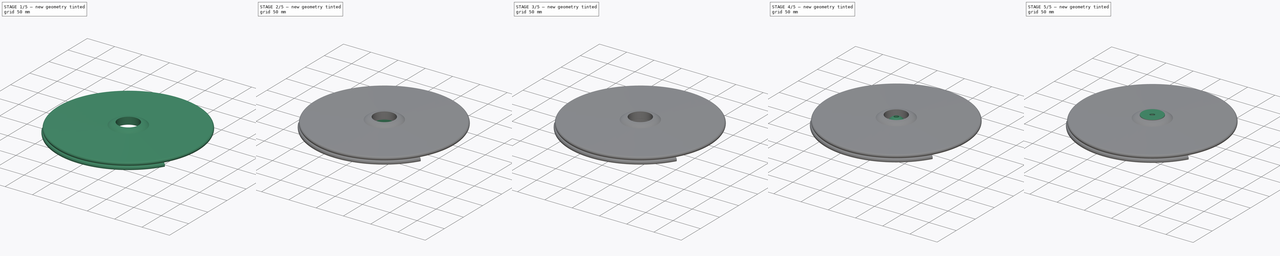
[diagram: build sequence overview — one tinted view per stage of 5, left to right]
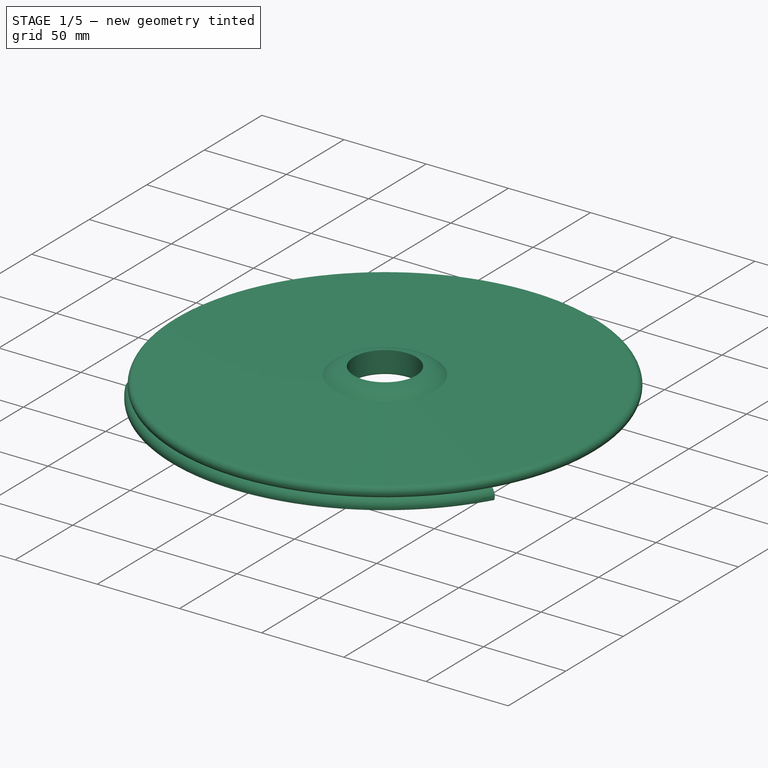
[diagram: stage 1 of 5 — iso view after this stage's code; geometry added in this stage tinted green]
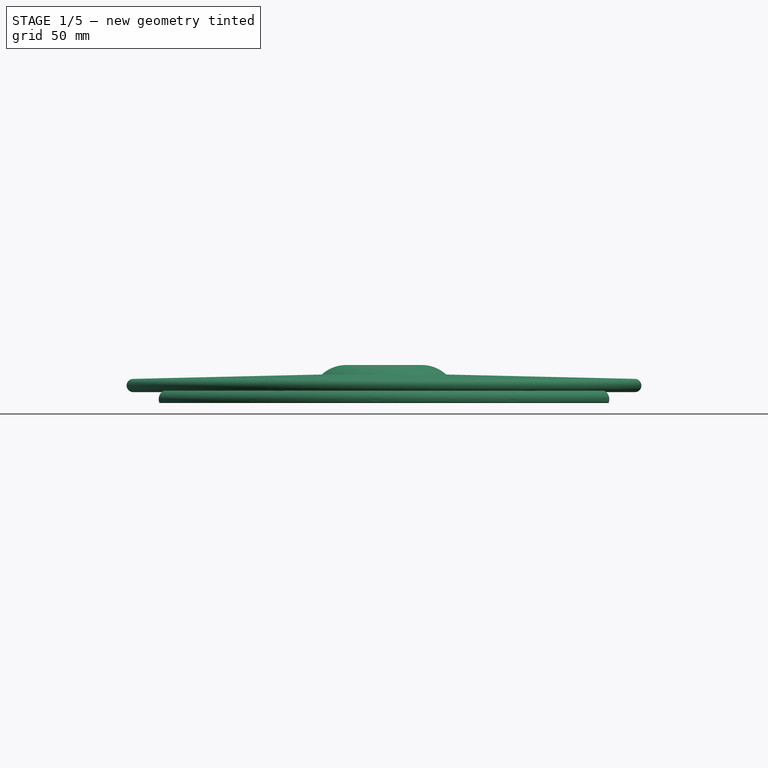
[diagram: stage 1 of 5 — front view after this stage's code; geometry added in this stage tinted green]
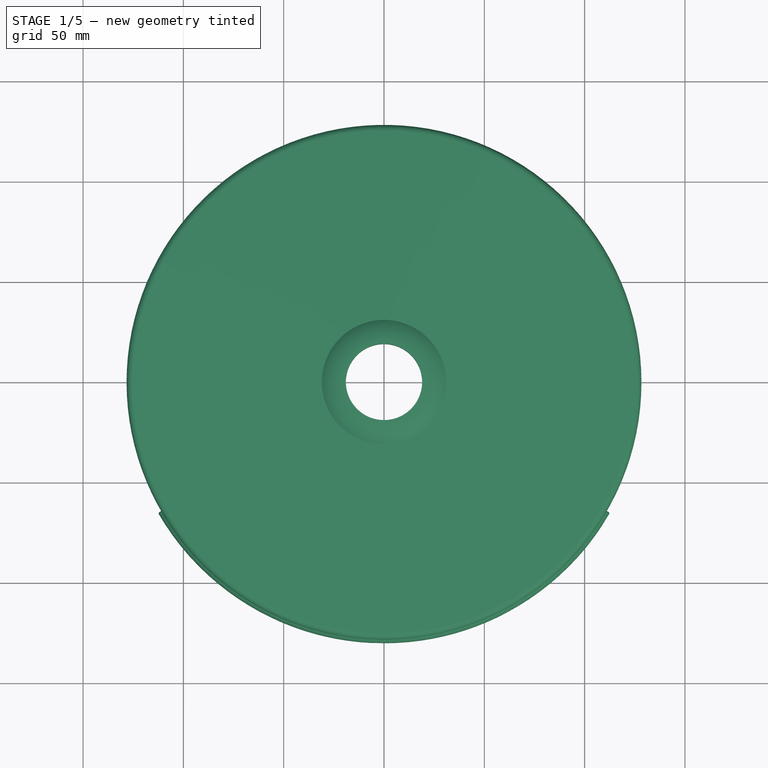
[diagram: stage 1 of 5 — top view after this stage's code; geometry added in this stage tinted green]
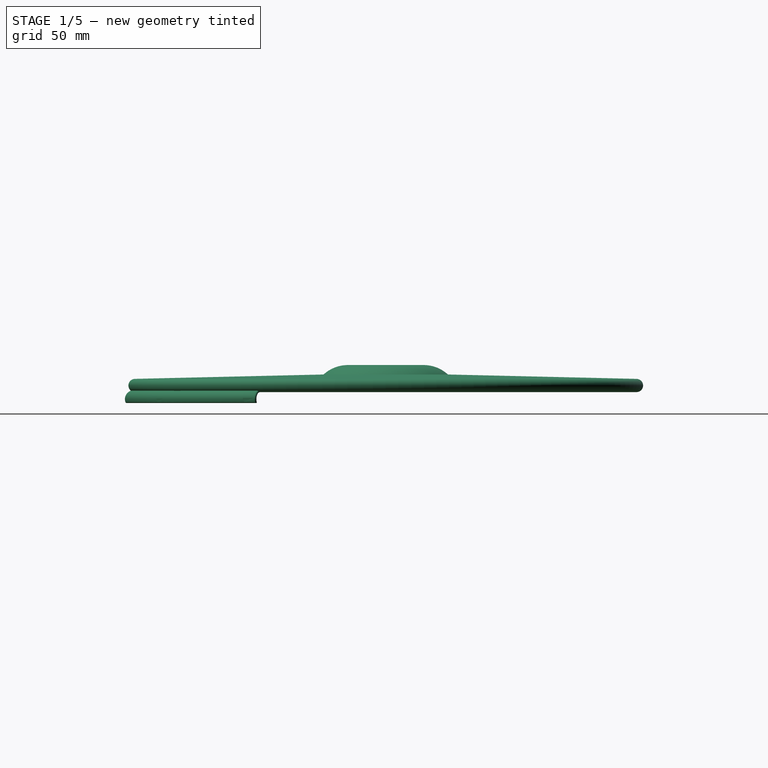
[diagram: stage 1 of 5 — right view after this stage's code; geometry added in this stage tinted green]
FCSTD DOCUMENT  (FreeCAD 1.0R39319 (Git))
Label: Cymbal
License: All rights reserved
LicenseURL: https://en.wikipedia.org/wiki/All_rights_reserved
objects: PartDesign::Fillet×10, Sketcher::SketchObject×9, PartDesign::SubtractiveCylinder×8, PartDesign::AdditiveCylinder×5, PartDesign::Body×5, PartDesign::Pad×4, PartDesign::Plane×4, PartDesign::Pocket×4, PartDesign::Revolution×3, PartDesign::Mirrored×3, PartDesign::SubtractiveBox×1, Part::Feature×1, PartDesign::Hole×1, PartDesign::AdditiveSphere×1, PartDesign::AdditiveWedge×1, PartDesign::SubtractiveSphere×1, PartDesign::SubShapeBinder×1, Part::FeaturePython×1, PartDesign::PolarPattern×1
note: 155 computed .brp shape members not serialized (recipe doc carries the construction recipe); baked Part::Feature solids carry a one-line shape summary decoded from their .brp

FEATURE [Sketcher::SketchObject] Sketch  label="Body Profile"
  ArcFitTolerance = 1e-06
  AttachmentSupport = -> [XZ_Plane]
  FullyConstrained = true
  MakeInternals = false
  MapMode = 5
  Placement = pos=(0,0,0) rot=(1,0,0;1.5708rad)
  sketch-geometry (4):
    g0: LineSegment StartX=0 StartY=0 StartZ=0 EndX=-125 EndY=0 EndZ=0
    g1: ArcOfCircle CenterX=-125 CenterY=3.3 CenterZ=0 NormalX=0 NormalY=0 NormalZ=1 AngleXU=0 Radius=3.3 StartAngle=1.59399 EndAngle=4.71239
    g2: LineSegment StartX=-125.077 StartY=6.59911 StartZ=0 EndX=0 EndY=9.5 EndZ=0
    g3: LineSegment StartX=0 StartY=0 StartZ=0 EndX=0 EndY=9.5 EndZ=0
  constraints (12):
    c: PointOnObject(g0,g-2)
    c: PointOnObject(g2,g-2)
    c: Coincident(g3,g0)
    c: Coincident(g3,g2)
    c: Radius(g1) = 3.3
    c: Tangent(g1,g-1)
    c: Tangent(g2,g1) = 1.5708
    c: DistanceX(g1,g-1) = 125
    c: DistanceY(g-1,g2) = 9.5
    c: Vertical(g1,g1)
    c: Coincident(g1,g0)
    c: Horizontal(g0)
FEATURE [PartDesign::Revolution] Revolution
  Angle = 360
  Angle2 = 60
  Axis = (0,2e-16,1)
  Base = (0,0,0)
  Placement = pos=(0,0,0) rot=(1,0,0;1.5708rad)
  Profile = -> Sketch
  ReferenceAxis = -> Sketch [V_Axis]
  Refine = true
  Suppressed = false
  Type = 0
FEATURE [Sketcher::SketchObject] Sketch001
  ArcFitTolerance = 1e-06
  AttachmentSupport = -> [XZ_Plane]
  ExternalGeometry = -> [Revolution]
  FullyConstrained = true
  MakeInternals = false
  MapMode = 5
  Placement = pos=(0,0,0) rot=(1,0,0;1.5708rad)
  sketch-geometry (4):
    g0: LineSegment StartX=-19 StartY=13.5 StartZ=0 EndX=0 EndY=13.5 EndZ=0
    g1: ArcOfCircle CenterX=-18.8496 CenterY=-4.49937 CenterZ=0 NormalX=0 NormalY=0 NormalZ=1 AngleXU=0 Radius=18 StartAngle=1.57915 EndAngle=2.31179
    g2: LineSegment StartX=0 StartY=13.5 StartZ=0 EndX=0 EndY=9.5 EndZ=0
    g3: LineSegment StartX=0 StartY=9.5 StartZ=0 EndX=-31 EndY=8.78102 EndZ=0
  constraints (12):
    c: Distance(g0) = 19
    c: Horizontal(g0)
    c: Radius(g1) = 18
    c: Vertical(g0,g-1)
    c: DistanceX(g1,g0) = 12
    c: Coincident(g0,g2)
    c: Coincident(g2,g3)
    c: Coincident(g3,g1)
    c: DistanceY(g2,g2) = 4
    c: Coincident(g1,g0)
    c: Tangent(g3,g-3)
    c: Vertical(g2)
FEATURE [PartDesign::Revolution] Revolution001
  Angle = 360
  Angle2 = 60
  Axis = (0,2e-16,1)
  Base = (0,0,0)
  BaseFeature = -> Revolution
  Placement = pos=(0,0,0) rot=(1,0,0;1.5708rad)
  Profile = -> Sketch001
  ReferenceAxis = -> Sketch001 [V_Axis]
  Refine = true
  Suppressed = false
  Type = 0
FEATURE [PartDesign::SubtractiveCylinder] Cylinder
  Angle = 360
  AttacherType = Attacher::AttachEngine3D
  AttachmentSupport = -> [X_Axis]
  BaseFeature = -> Revolution001
  FirstAngle = 0
  Height = 20
  MapMode = 2
  Radius = 19
  Refine = true
  SecondAngle = 0
  Suppressed = false
FEATURE [PartDesign::Fillet] Fillet001
  Base = -> Cylinder [Edge5]
  BaseFeature = -> Cylinder
  Radius = 1
  Refine = true
  SupportTransform = false
  Suppressed = false
  UseAllEdges = false
FEATURE [PartDesign::Body] Body002  label="Pole Mount Body"
  AllowCompound = false
  Group = -> [Cylinder007,Sphere,Wedge,Cylinder008,Cylinder009,Fillet006,Fillet009]
  Origin = -> Origin002
  Tip = -> Fillet009
FEATURE [PartDesign::SubtractiveCylinder] Cylinder012
  Angle = 360
  AttacherType = Attacher::AttachEngine3D
  AttachmentOffset = pos=(-11.25,-93,0) rot=(0,0,1;0rad)
  AttachmentSupport = -> [XY_Plane]
  BaseFeature = -> Fillet001
  FirstAngle = 0
  Height = 5
  MapMode = 5
  Placement = pos=(-11.25,-93,0) rot=(0,0,1;0rad)
  Radius = 1
  Refine = true
  SecondAngle = 0
  Suppressed = false
FEATURE [PartDesign::Body] Body001  label="Sensor Body"
  AllowCompound = false
  Group = -> [Sketch002,Pad,Cylinder001,Cylinder002,Box,Cylinder003,DatumPlane,Sketch003,Pocket,Cylinder004,Pad001,DatumPlane001,Sketch004,Hole,Mirrored,Sketch005,Pocket001,Pocket002,Pocket003,Mirrored001,Fillet002,Fillet003,Fillet005,Fillet,DatumPlane003,Cylinder006]
  Origin = -> Origin001
  Placement = pos=(0,0,-1.5) rot=(0,0,1;0rad)
  Tip = -> Cylinder006
FEATURE [PartDesign::Mirrored] Mirrored002
  BaseFeature = -> Cylinder012
  MirrorPlane = -> YZ_Plane
  Originals = -> [Cylinder012]
  Placement = pos=(-11.25,-93,0) rot=(0,0,1;0rad)
  Refine = true
  Suppressed = false
  TransformMode = 0
FEATURE [PartDesign::Body] Body  label="Cymbal Body"
  AllowCompound = false
  Group = -> [Sketch,Revolution,Sketch001,Revolution001,Cylinder,Fillet001,DatumPlane002,Cylinder012,Mirrored002,Cylinder013,PolarPattern]
  Origin = -> Origin
  Tip = -> PolarPattern
FEATURE [Sketcher::SketchObject] Sketch007
  ArcFitTolerance = 1e-06
  AttachmentSupport = -> [XY_Plane004]
  FullyConstrained = true
  MakeInternals = false
  MapMode = 5
  sketch-geometry (6):
    g0: ArcOfCircle CenterX=0 CenterY=0 CenterZ=0 NormalX=0 NormalY=0 NormalZ=1 AngleXU=0 Radius=32 StartAngle=3.66519 EndAngle=5.75959
    g1: LineSegment [constr] StartX=-27.7128 StartY=-16 StartZ=0 EndX=0 EndY=0 EndZ=0
    g2: ArcOfCircle CenterX=0 CenterY=0 CenterZ=0 NormalX=0 NormalY=0 NormalZ=1 AngleXU=0 Radius=125.5 StartAngle=3.66519 EndAngle=5.75959
    g3: LineSegment [constr] StartX=0 StartY=0 StartZ=0 EndX=108.686 EndY=-62.75 EndZ=0
    g4: LineSegment StartX=-27.7128 StartY=-16 StartZ=0 EndX=-108.686 EndY=-62.75 EndZ=0
    g5: LineSegment StartX=27.7128 StartY=-16 StartZ=0 EndX=108.686 EndY=-62.75 EndZ=0
  constraints (16):
    c: Radius(g0) = 32
    c: Angle(g0) = 2.0944
    c: Coincident(g0,g-1)
    c: Coincident(g1,g0)
    c: Coincident(g1,g0)
    c: Angle(g-1,g1) = 0.523599
    c: Radius(g2) = 125.5
    c: Angle(g2) = 2.0944
    c: Coincident(g2,g0)
    c: Coincident(g3,g0)
    c: Coincident(g3,g2)
    c: Angle(g3,g-1) = 0.523599
    c: Coincident(g4,g0)
    c: Coincident(g4,g2)
    c: Coincident(g5,g0)
    c: Coincident(g5,g2)
FEATURE [PartDesign::Pad] Pad003
  Direction = (0,0,1)
  Length = 1
  Length2 = 10
  Profile = -> Sketch007
  ReferenceAxis = -> Sketch007 [N_Axis]
  Refine = true
  Suppressed = false
  Type = 0
FEATURE [Sketcher::SketchObject] Sketch008
  ArcFitTolerance = 1e-06
  AttachmentSupport = -> [Pad003]
  ExternalGeometry = -> [Pad003]
  FullyConstrained = true
  MakeInternals = false
  MapMode = 5
  Placement = pos=(-2.19898e-06,3.80874e-06,0) rot=(-0.186157,0.694747,0.694747;3.50969rad)
  sketch-geometry (4):
    g0: ArcOfCircle CenterX=125.5 CenterY=-3.5 CenterZ=0 NormalX=0 NormalY=0 NormalZ=1 AngleXU=0 Radius=3.5 StartAngle=5.75959 EndAngle=7.85398
    g1: ArcOfCircle CenterX=125.5 CenterY=-3.5 CenterZ=0 NormalX=0 NormalY=0 NormalZ=1 AngleXU=0 Radius=4.5 StartAngle=5.75959 EndAngle=7.85398
    g2: LineSegment StartX=128.531 StartY=-5.25 StartZ=0 EndX=129.397 EndY=-5.75 EndZ=0
    g3: LineSegment StartX=125.5 StartY=1 StartZ=0 EndX=125.5 EndY=-4.4e-15 EndZ=0
  constraints (11):
    c: Angle(g0) = 2.0944
    c: Coincident(g0,g-3)
    c: Angle(g1) = 2.0944
    c: Coincident(g1,g0)
    c: Coincident(g1,g-3)
    c: Coincident(g0,g2)
    c: Coincident(g2,g1)
    c: Radius(g0) = 3.5
    c: Vertical(g0,g0)
    c: Coincident(g3,g1)
    c: Coincident(g3,g0)
FEATURE [PartDesign::Revolution] Revolution002
  Angle = 120
  Angle2 = 60
  Axis = (-1e-16,2e-16,1)
  Base = (-2.19898e-06,3.80874e-06,0)
  BaseFeature = -> Pad003
  Profile = -> Sketch008
  ReferenceAxis = -> Sketch008 [V_Axis]
  Refine = true
  Suppressed = false
  Type = 0
FEATURE [PartDesign::Fillet] Fillet010
  Base = -> Revolution002 [Edge9,Edge15,Edge2,Edge16,Edge17,Edge10]
  BaseFeature = -> Revolution002
  Radius = 0.8
  Refine = true
  SupportTransform = false
  Suppressed = false
  UseAllEdges = false
FEATURE [PartDesign::Body] Body004  label="Shock Pad Body"
  AllowCompound = false
  Group = -> [Sketch007,Pad003,Sketch008,Revolution002,Fillet010]
  Origin = -> Origin004
  Placement = pos=(0,0,8.8) rot=(0,0,1;0rad)
  Tip = -> Fillet010
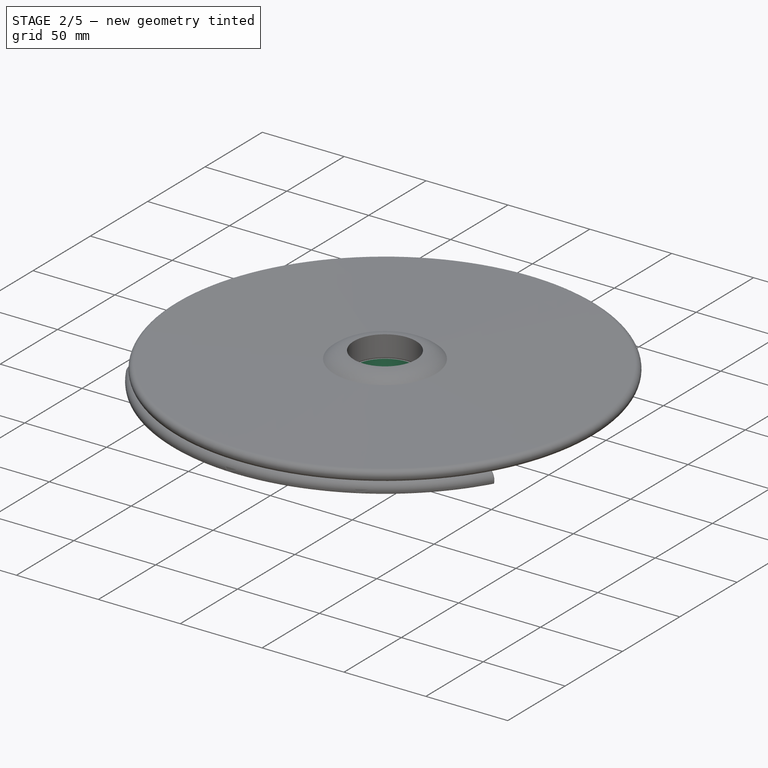
[diagram: stage 2 of 5 — iso view after this stage's code; geometry added in this stage tinted green]
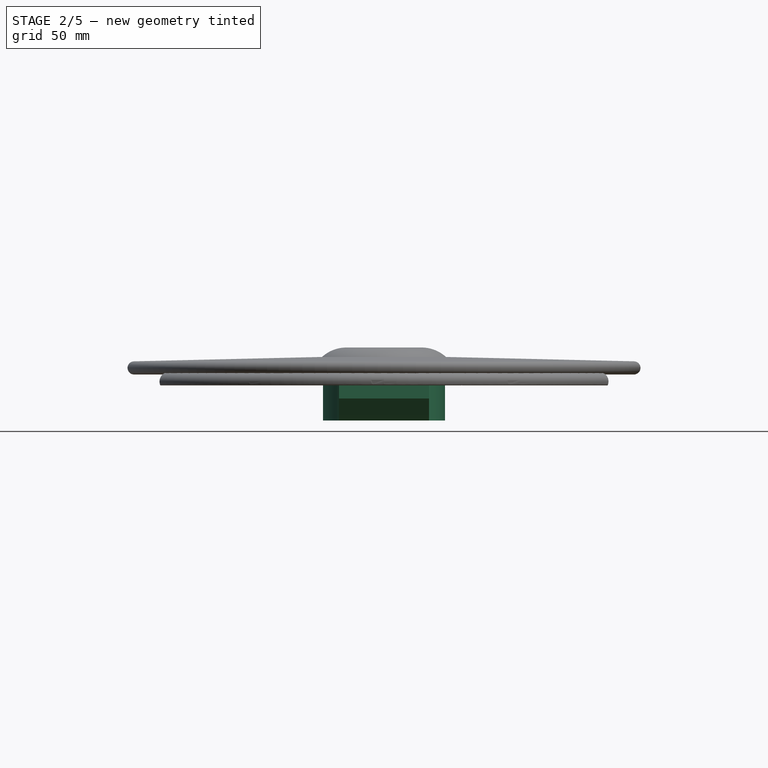
[diagram: stage 2 of 5 — front view after this stage's code; geometry added in this stage tinted green]
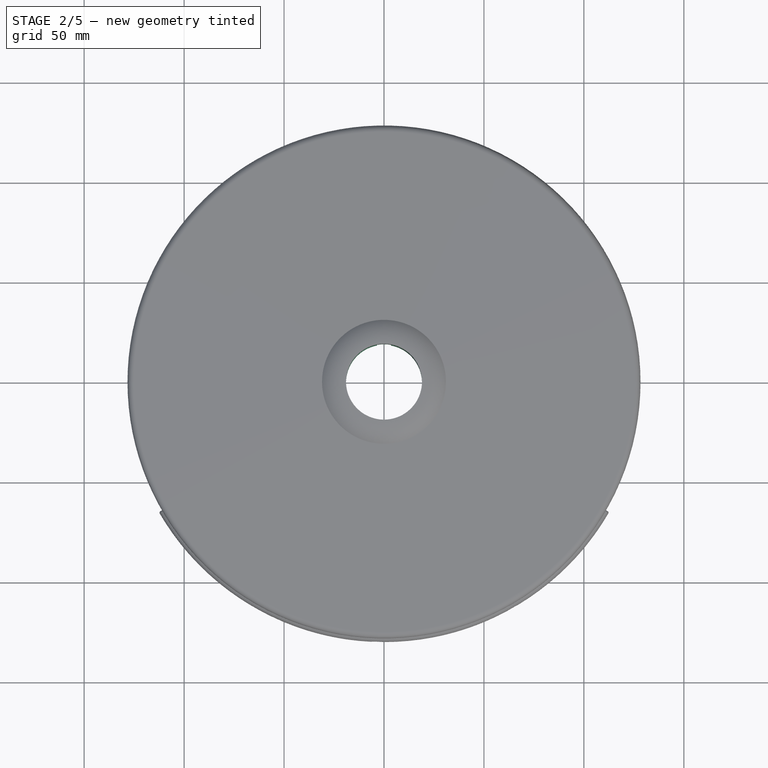
[diagram: stage 2 of 5 — top view after this stage's code; geometry added in this stage tinted green]
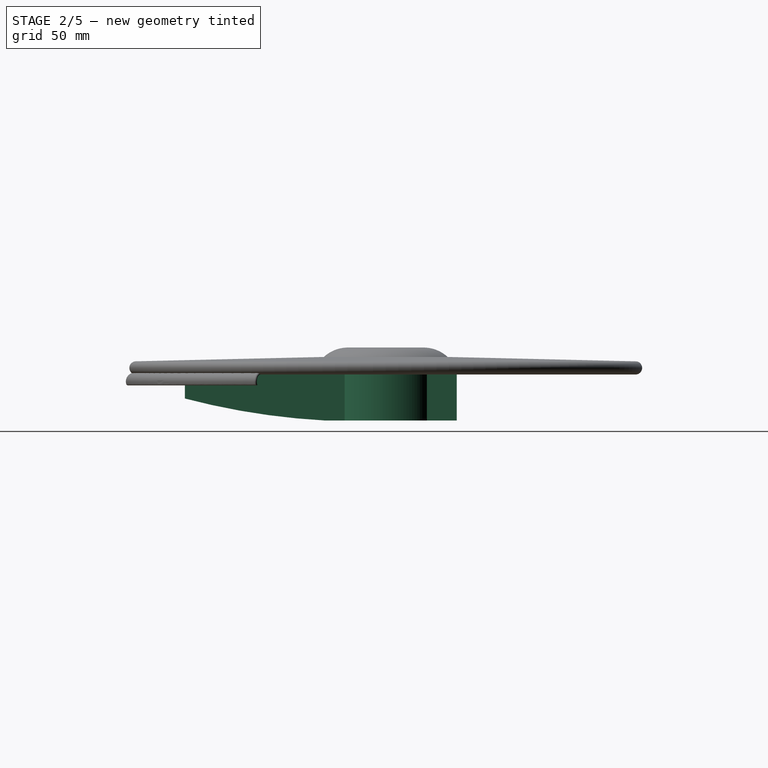
[diagram: stage 2 of 5 — right view after this stage's code; geometry added in this stage tinted green]
FEATURE [Sketcher::SketchObject] Sketch002
  ArcFitTolerance = 1e-06
  AttachmentSupport = -> [YZ_Plane001]
  FullyConstrained = true
  MakeInternals = false
  MapMode = 5
  Placement = pos=(0,0,0) rot=(0.57735,0.57735,0.57735;2.0944rad)
  sketch-geometry (6):
    g0: LineSegment StartX=-30.5 StartY=0 StartZ=0 EndX=35.5 EndY=0 EndZ=0
    g1: LineSegment StartX=35.5 StartY=0 StartZ=0 EndX=35.5 EndY=-23 EndZ=0
    g2: LineSegment StartX=-30.5 StartY=0 StartZ=0 EndX=-100.5 EndY=0 EndZ=0
    g3: LineSegment StartX=-100.5 StartY=0 StartZ=0 EndX=-100.5 EndY=-12 EndZ=0
    g4: LineSegment StartX=35.5 StartY=-23 StartZ=0 EndX=-30.5 EndY=-23 EndZ=0
    g5: ArcOfCircle CenterX=-11.4458 CenterY=326.481 CenterZ=0 NormalX=0 NormalY=0 NormalZ=1 AngleXU=0 Radius=350 StartAngle=4.45512 EndAngle=4.65792
  constraints (19):
    c: Distance(g0) = 66
    c: Horizontal(g0)
    c: Distance(g1) = 23
    c: Coincident(g1,g0)
    c: Vertical(g1)
    c: Distance(g2) = 70
    c: Coincident(g2,g0)
    c: Distance(g3) = 12
    c: Coincident(g3,g2)
    c: Vertical(g3)
    c: Coincident(g4,g1)
    c: Horizontal(g4)
    c: Coincident(g5,g3)
    c: Coincident(g5,g4)
    c: Radius(g5) = 350
    c: DistanceX(g0,g-1) = 30.5
    c: Vertical(g4,g0)
    c: Horizontal(g0,g-1)
    c: Horizontal(g2)
FEATURE [PartDesign::Pad] Pad
  Direction = (1,0,0)
  Length = 45
  Length2 = 10
  Midplane = true
  Placement = pos=(0,0,0) rot=(1,1,1;2.0944rad)
  Profile = -> Sketch002
  ReferenceAxis = -> Sketch002 [N_Axis]
  Refine = true
  Suppressed = false
  Type = 0
FEATURE [PartDesign::AdditiveCylinder] Cylinder001  label="Out mount ring (add)"
  Angle = 360
  AttacherType = Attacher::AttachEngine3D
  AttachmentSupport = -> [XY_Plane001]
  BaseFeature = -> Pad
  FirstAngle = 0
  Height = 23
  MapMode = 5
  Placement = pos=(0,0,0) rot=(0,1,0;3.14159rad)
  Radius = 30.5
  Refine = true
  SecondAngle = 0
  Suppressed = false
FEATURE [PartDesign::SubtractiveCylinder] Cylinder002  label="Inner mount ring (sub)"
  Angle = 360
  AttacherType = Attacher::AttachEngine3D
  AttachmentOffset = pos=(0,0,-4) rot=(0,0,1;0rad)
  AttachmentSupport = -> [XY_Plane001]
  BaseFeature = -> Cylinder001
  FirstAngle = 0
  Height = 30
  MapMode = 5
  Placement = pos=(0,0,4) rot=(0,1,0;3.14159rad)
  Radius = 19
  Refine = true
  SecondAngle = 0
  Suppressed = false
FEATURE [PartDesign::SubtractiveBox] Box  label="Guide cutout"
  AttacherType = Attacher::AttachEngine3D
  AttachmentOffset = pos=(-3.5,18,5) rot=(0,0,1;0rad)
  AttachmentSupport = -> [XY_Plane001]
  BaseFeature = -> Cylinder002
  Height = 25
  Length = 7
  MapMode = 5
  Placement = pos=(3.5,18,-5) rot=(0,1,0;3.14159rad)
  Refine = true
  Suppressed = false
  Width = 13
FEATURE [PartDesign::AdditiveCylinder] Cylinder003
  Angle = 360
  AttacherType = Attacher::AttachEngine3D
  AttachmentOffset = pos=(0,-76,3.2) rot=(0,0,1;0rad)
  AttachmentSupport = -> [XY_Plane001]
  BaseFeature = -> Box
  FirstAngle = 0
  Height = 1
  MapMode = 5
  Placement = pos=(0,-76,-3.2) rot=(0,1,0;3.14159rad)
  Radius = 13.5
  Refine = true
  SecondAngle = 0
  Suppressed = false
FEATURE [Part::Feature] Part__Feature  label="PC712_STEP_SW0002"
  Placement = pos=(17.9,-41.9,-9.5) rot=(0,0,1;0rad)
  shape: bbox 39.72 x 27.07 x 27.07 mm, 170 faces, 3 solids (baked)
FEATURE [PartDesign::Plane] DatumPlane
  AttachmentOffset = pos=(0,0,18) rot=(0,0,1;0rad)
  AttachmentSupport = -> [YZ_Plane001]
  Length = 152.492
  MapMode = 5
  Placement = pos=(18,0,0) rot=(0.57735,0.57735,0.57735;2.0944rad)
  ResizeMode = 0
  Width = 66.4924
FEATURE [Sketcher::SketchObject] Sketch003
  ArcFitTolerance = 1e-06
  AttachmentSupport = -> [DatumPlane]
  ExternalGeometry = -> [Cylinder003]
  FullyConstrained = true
  MakeInternals = false
  MapMode = 5
  Placement = pos=(18,0,0) rot=(0.57735,0.57735,0.57735;2.0944rad)
  sketch-geometry (4):
    g0: LineSegment StartX=-30.5 StartY=2 StartZ=0 EndX=-30.5 EndY=-20.5 EndZ=0
    g1: LineSegment StartX=-84.4864 StartY=0.935131 StartZ=0 EndX=-30.5 EndY=2 EndZ=0
    g2: LineSegment StartX=-84.4864 StartY=0.935131 StartZ=0 EndX=-84.4864 EndY=-13.26 EndZ=0
    g3: ArcOfCircle CenterX=-11.4458 CenterY=326.481 CenterZ=0 NormalX=0 NormalY=0 NormalZ=1 AngleXU=0 Radius=347.504 StartAngle=4.50062 EndAngle=4.65753
  constraints (11):
    c: Coincident(g1,g0)
    c: Coincident(g3,g2)
    c: Coincident(g3,g0)
    c: Vertical(g0)
    c: Coincident(g0,g-4)
    c: DistanceX(g-4,g1) = 16
    c: Vertical(g2)
    c: PointOnObject(g1,g-4)
    c: DistanceY(g-5,g0) = 2.5
    c: Coincident(g2,g1)
    c: Coincident(g3,g-5)
FEATURE [PartDesign::Pocket] Pocket
  BaseFeature = -> Cylinder003
  Direction = (-1,0,0)
  Length = 36
  Length2 = 5
  Placement = pos=(0,-76,-3.2) rot=(0,1,0;3.14159rad)
  Profile = -> Sketch003
  ReferenceAxis = -> Sketch003 [N_Axis]
  Refine = true
  Suppressed = false
  Type = 0
FEATURE [PartDesign::AdditiveCylinder] Cylinder004
  Angle = 360
  AttacherType = Attacher::AttachEngine3D
  AttachmentOffset = pos=(0,-70,9) rot=(0,0,1;0rad)
  AttachmentSupport = -> [XY_Plane001]
  BaseFeature = -> Pocket
  FirstAngle = 0
  Height = 1
  MapMode = 5
  Placement = pos=(0,-70,-9) rot=(0,1,0;3.14159rad)
  Radius = 10
  Refine = true
  SecondAngle = 0
  Suppressed = false
FEATURE [PartDesign::SubtractiveCylinder] Cylinder013
  Angle = 360
  AttacherType = Attacher::AttachEngine3D
  AttachmentOffset = pos=(-24.5,0,0) rot=(0,0,1;0rad)
  AttachmentSupport = -> [XY_Plane]
  BaseFeature = -> Mirrored002
  FirstAngle = 0
  Height = 10
  MapMode = 5
  Placement = pos=(-24.5,0,0) rot=(0,0,1;0rad)
  Radius = 1
  Refine = true
  SecondAngle = 0
  Suppressed = false
FEATURE [PartDesign::PolarPattern] PolarPattern
  Angle = 360
  Axis = -> Z_Axis
  BaseFeature = -> Cylinder013
  Mode = 0
  Occurrences = 6
  Offset = 120
  Originals = -> [Cylinder013]
  Placement = pos=(-24.5,0,0) rot=(0,0,1;0rad)
  Refine = true
  Suppressed = false
  TransformMode = 0
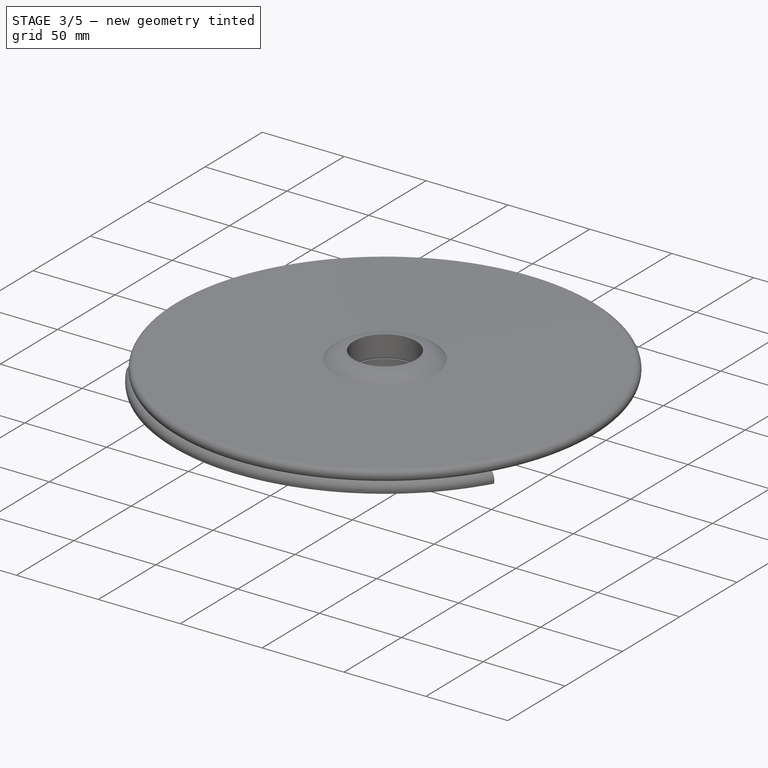
[diagram: stage 3 of 5 — iso view after this stage's code; geometry added in this stage tinted green]
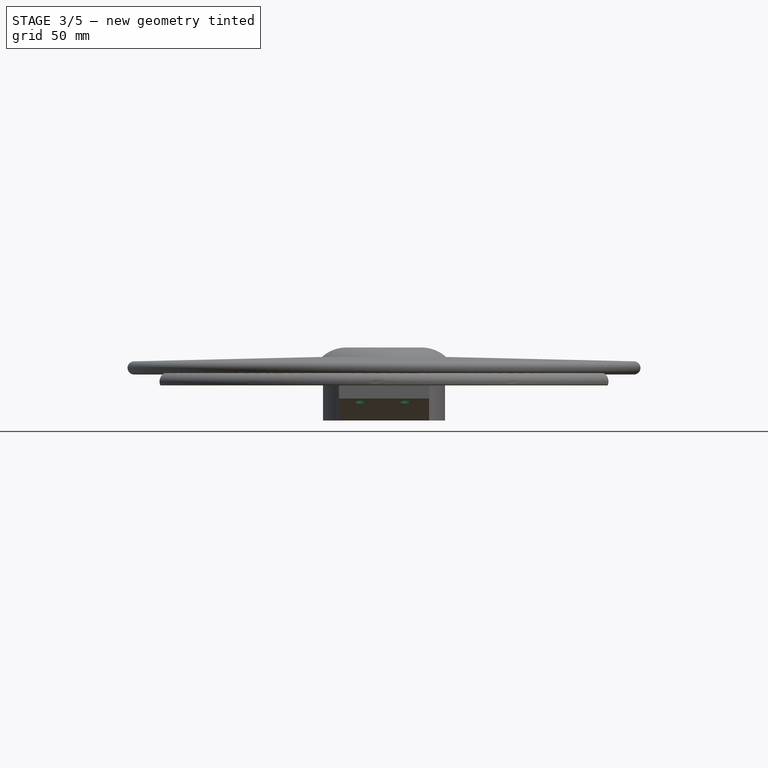
[diagram: stage 3 of 5 — front view after this stage's code; geometry added in this stage tinted green]
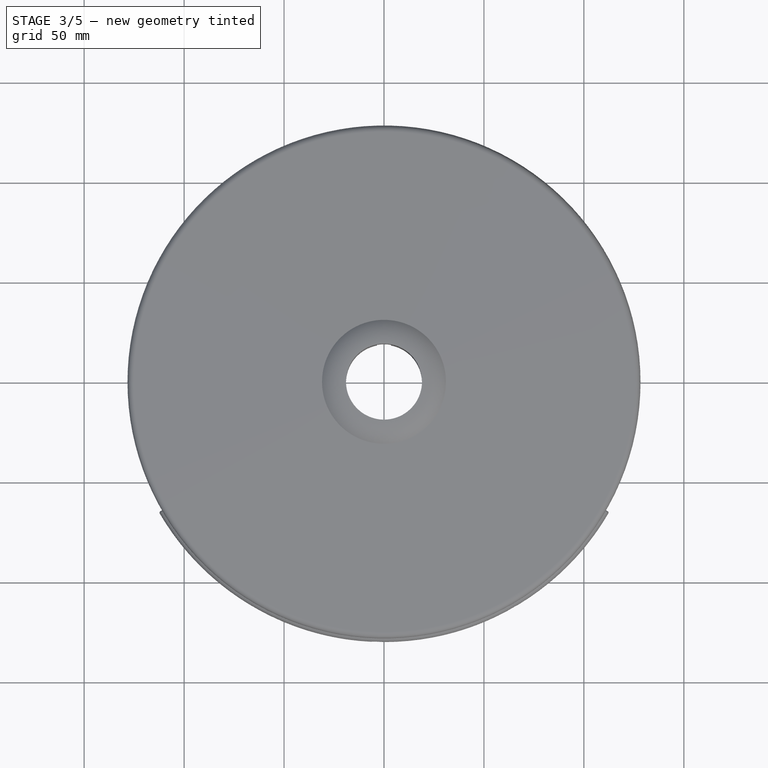
[diagram: stage 3 of 5 — top view after this stage's code; geometry added in this stage tinted green]
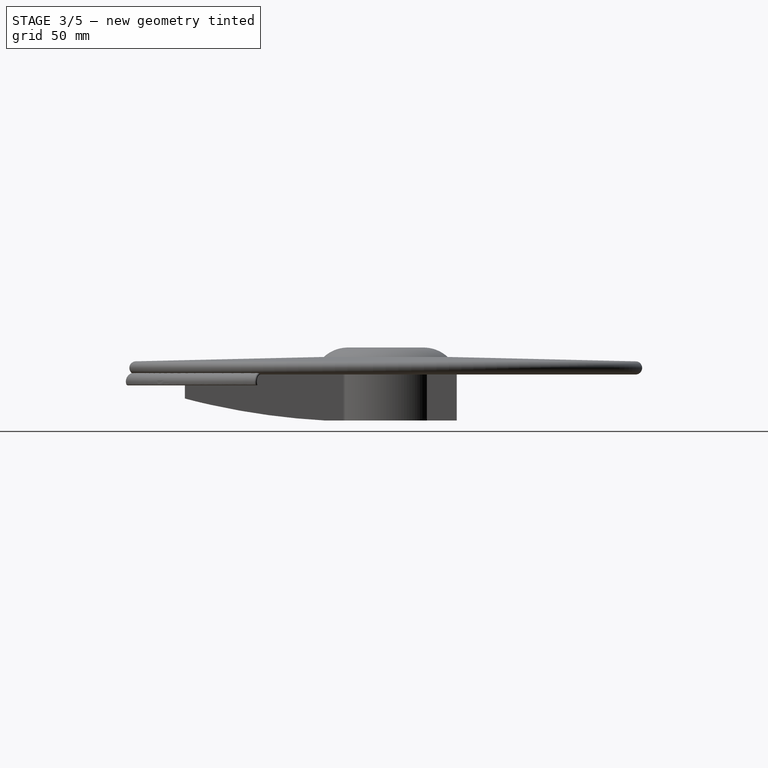
[diagram: stage 3 of 5 — right view after this stage's code; geometry added in this stage tinted green]
FEATURE [PartDesign::Pad] Pad001
  BaseFeature = -> Cylinder004
  Direction = (0,0,-1)
  Length = 10
  Length2 = 10
  Placement = pos=(0,-70,-9) rot=(0,1,0;3.14159rad)
  Profile = -> Cylinder004 [Face24]
  Refine = true
  Suppressed = false
  Type = 2
FEATURE [PartDesign::Plane] DatumPlane001
  AttachmentOffset = pos=(0,0,-23) rot=(0,0,1;0rad)
  AttachmentSupport = -> [XY_Plane001]
  Length = 79.0681
  MapMode = 5
  Placement = pos=(0,0,-23) rot=(0,0,1;0rad)
  ResizeMode = 0
  Width = 154.197
FEATURE [Sketcher::SketchObject] Sketch004
  ArcFitTolerance = 1e-06
  AttachmentSupport = -> [DatumPlane001]
  FullyConstrained = true
  MakeInternals = false
  MapMode = 5
  Placement = pos=(0,0,-23) rot=(0,0,1;0rad)
  sketch-geometry (4):
    g0: Circle CenterX=-12.25 CenterY=21.2176 CenterZ=0 NormalX=0 NormalY=0 NormalZ=1 AngleXU=0 Radius=1.25
    g1: Circle CenterX=-12.25 CenterY=-21.2176 CenterZ=0 NormalX=0 NormalY=0 NormalZ=1 AngleXU=0 Radius=1.25
    g2: Circle CenterX=-24.5 CenterY=0 CenterZ=0 NormalX=0 NormalY=0 NormalZ=1 AngleXU=0 Radius=1.25
    g3: LineSegment [constr] StartX=-12.25 StartY=21.2176 StartZ=0 EndX=0 EndY=0 EndZ=0
  constraints (11):
    c: PointOnObject(g2,g-1)
    c: Distance(g2,g-1) = 24.5
    c: Distance(g-1,g0) = 24.5
    c: Diameter(g0) = 2.5
    c: Vertical(g1,g0)
    c: Equal(g2,g1)
    c: Equal(g1,g0)
    c: Coincident(g3,g0)
    c: Coincident(g3,g-1)
    c: Angle(g-2,g3) = 0.523599
    c: Distance(g1,g-1) = 24.5
FEATURE [PartDesign::Hole] Hole
  BaseFeature = -> Pad001
  CustomThreadClearance = 0
  Depth = 305.269
  DepthType = 1
  Diameter = 3
  DrillForDepth = false
  DrillPoint = 1
  DrillPointAngle = 118
  HoleCutCountersinkAngle = 90
  HoleCutCustomValues = false
  HoleCutDepth = 21.5
  HoleCutDiameter = 6
  HoleCutType = 1
  ModelThread = false
  Placement = pos=(0,-70,-9) rot=(0,1,0;3.14159rad)
  Profile = -> Sketch004
  Refine = true
  Reversed = true
  Suppressed = false
  Tapered = false
  TaperedAngle = 90
  ThreadClass = 0
  ThreadDepth = 305.269
  ThreadDepthType = 0
  ThreadDirection = 0
  ThreadFit = 0
  ThreadSize = 0
  ThreadType = 0
  Threaded = false
  UseCustomThreadClearance = false
FEATURE [PartDesign::Mirrored] Mirrored
  BaseFeature = -> Hole
  MirrorPlane = -> Sketch004 [V_Axis]
  Originals = -> [Hole]
  Placement = pos=(0,-70,-9) rot=(0,1,0;3.14159rad)
  Refine = true
  Suppressed = false
  TransformMode = 0
FEATURE [Sketcher::SketchObject] Sketch005
  ArcFitTolerance = 1e-06
  AttachmentSupport = -> [DatumPlane001]
  FullyConstrained = true
  MakeInternals = false
  MapMode = 5
  Placement = pos=(0,0,-23) rot=(0,0,1;0rad)
  sketch-geometry (2):
    g0: Circle CenterX=-11.25 CenterY=-93 CenterZ=0 NormalX=0 NormalY=0 NormalZ=1 AngleXU=0 Radius=1.25
    g1: Circle CenterX=-11.25 CenterY=-93 CenterZ=0 NormalX=0 NormalY=0 NormalZ=1 AngleXU=0 Radius=3
  constraints (5):
    c: Diameter(g0) = 2.5
    c: Distance(g0,g-2) = 11.25
    c: DistanceY(g0,g-1) = 93
    c: Diameter(g1) = 6
    c: Coincident(g1,g0)
FEATURE [PartDesign::Pocket] Pocket001
  BaseFeature = -> Mirrored
  Direction = (0,0,-1)
  Length = 5
  Length2 = 5
  Placement = pos=(0,-70,-9) rot=(0,1,0;3.14159rad)
  Profile = -> Sketch005 [Edge1]
  ReferenceAxis = -> Sketch005 [N_Axis]
  Refine = true
  Reversed = true
  Suppressed = false
  Type = 1
FEATURE [PartDesign::Pocket] Pocket002
  BaseFeature = -> Pocket001
  Direction = (0,0,-1)
  Length = 17
  Length2 = 5
  Placement = pos=(0,-70,-9) rot=(0,1,0;3.14159rad)
  Profile = -> Sketch005 [Edge2]
  ReferenceAxis = -> Sketch005 [N_Axis]
  Refine = true
  Reversed = true
  Suppressed = false
  Type = 0
FEATURE [PartDesign::Pocket] Pocket003
  BaseFeature = -> Pocket002
  Direction = (0,0,-1)
  Length = 24
  Length2 = -19
  Placement = pos=(0,-70,-9) rot=(0,1,0;3.14159rad)
  Profile = -> Sketch005 [Edge2]
  ReferenceAxis = -> Sketch005 [N_Axis]
  Refine = true
  Reversed = true
  Suppressed = false
  Type = 4
FEATURE [PartDesign::Mirrored] Mirrored001
  BaseFeature = -> Pocket003
  MirrorPlane = -> Sketch005 [V_Axis]
  Originals = -> [Pocket001,Pocket002,Pocket003]
  Placement = pos=(0,-70,-9) rot=(0,1,0;3.14159rad)
  Refine = true
  Suppressed = false
  TransformMode = 0
FEATURE [PartDesign::Plane] DatumPlane002
  AttachmentOffset = pos=(0,0,-3.9) rot=(0,0,1;0rad)
  AttachmentSupport = -> [XY_Plane]
  Length = 307.342
  MapMode = 5
  Placement = pos=(0,0,-3.9) rot=(0,0,1;0rad)
  ResizeMode = 0
  Width = 307.573
FEATURE [PartDesign::Fillet] Fillet002  label="Mount ring to front fillet"
  Base = -> Mirrored001 [Edge47,Edge48]
  BaseFeature = -> Mirrored001
  Placement = pos=(0,-70,-9) rot=(0,1,0;3.14159rad)
  Radius = 2
  Refine = true
  SupportTransform = false
  Suppressed = false
  UseAllEdges = false
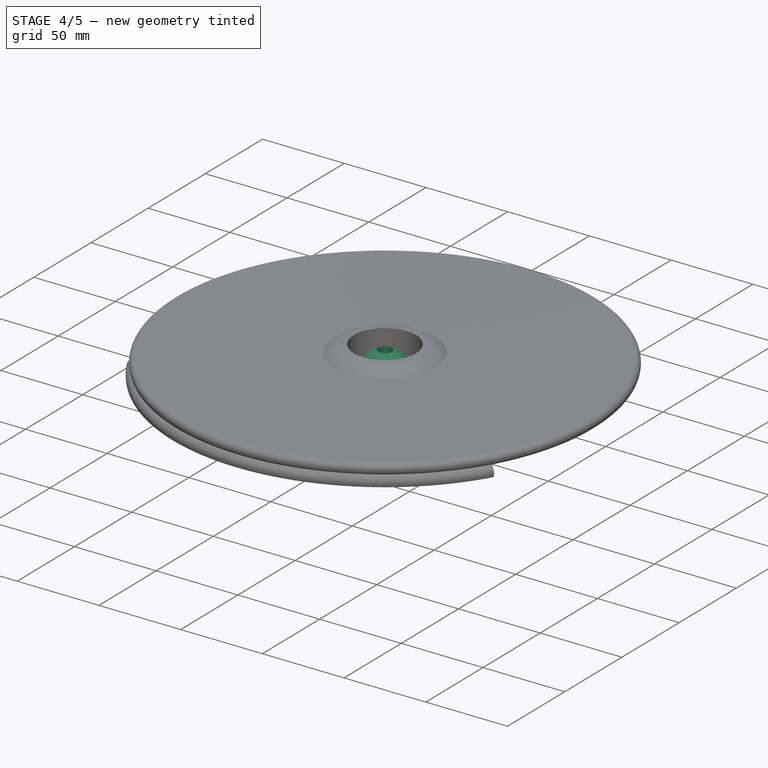
[diagram: stage 4 of 5 — iso view after this stage's code; geometry added in this stage tinted green]
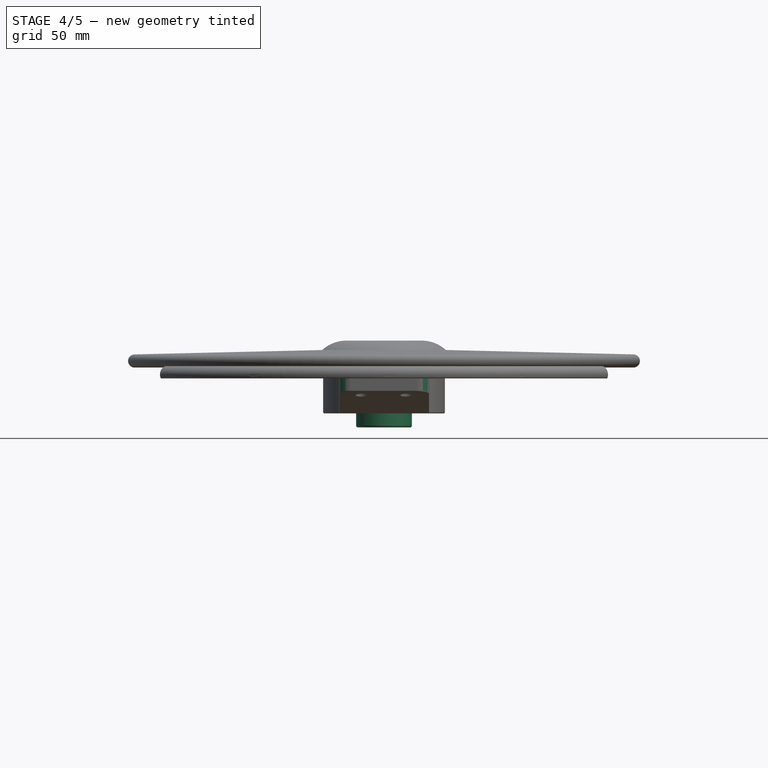
[diagram: stage 4 of 5 — front view after this stage's code; geometry added in this stage tinted green]
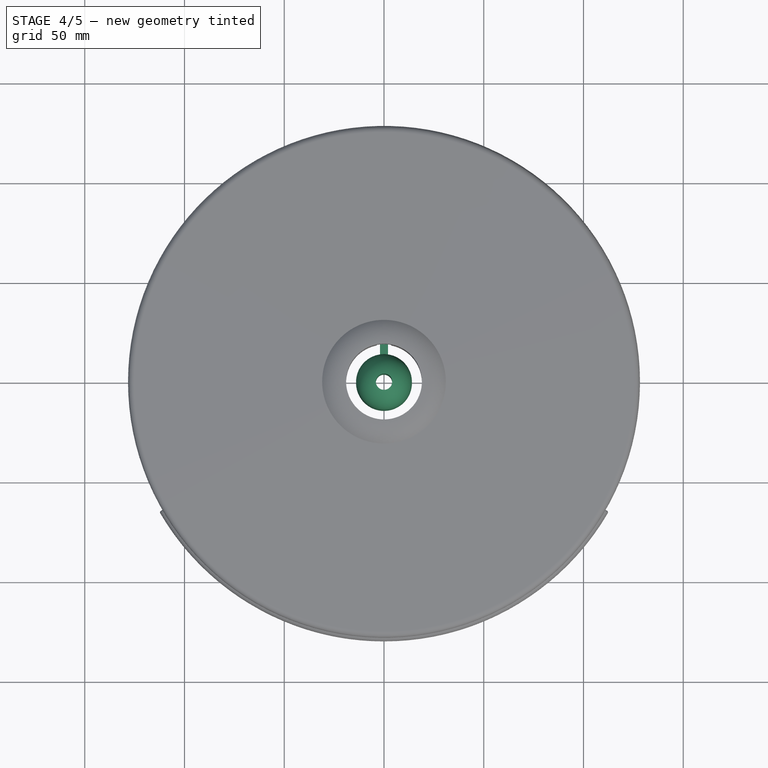
[diagram: stage 4 of 5 — top view after this stage's code; geometry added in this stage tinted green]
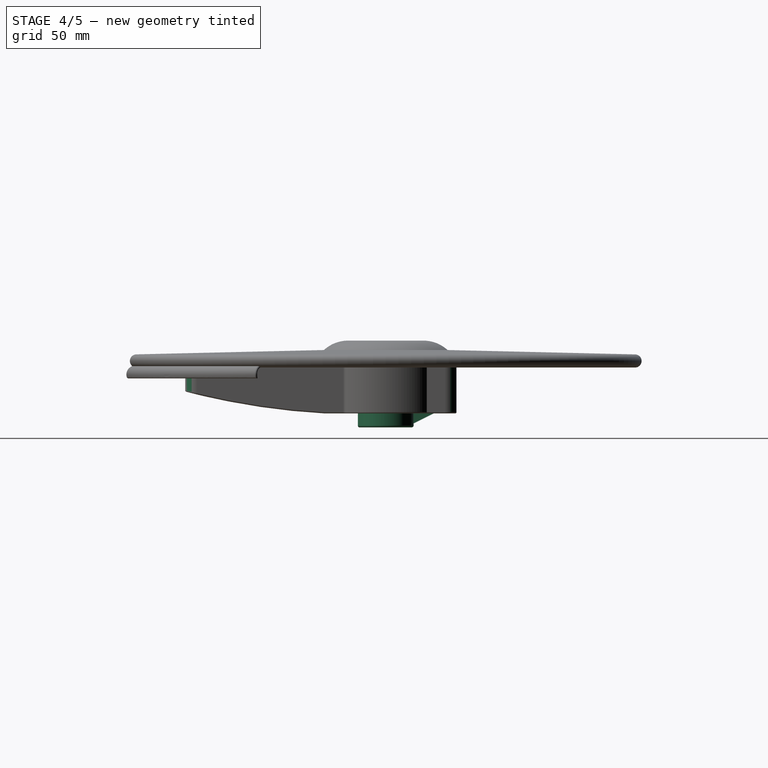
[diagram: stage 4 of 5 — right view after this stage's code; geometry added in this stage tinted green]
FEATURE [PartDesign::Fillet] Fillet003  label="Front and back fillet"
  Base = -> Fillet002 [Edge30,Edge36,Edge38,Edge32]
  BaseFeature = -> Fillet002
  Placement = pos=(0,-70,-9) rot=(0,1,0;3.14159rad)
  Radius = 6
  Refine = true
  SupportTransform = false
  Suppressed = false
  UseAllEdges = false
FEATURE [PartDesign::Fillet] Fillet005
  Base = -> Fillet003 [Edge53,Edge55,Edge58,Edge59,Edge49,Edge56,Edge51,Edge45,Edge41,Edge37,Edge33,Edge35,Edge31,Edge44,Edge38,Edge43,Edge48]
  BaseFeature = -> Fillet003
  Placement = pos=(0,-70,-9) rot=(0,1,0;3.14159rad)
  Radius = 0.7
  Refine = true
  SupportTransform = false
  Suppressed = false
  UseAllEdges = false
FEATURE [PartDesign::Plane] DatumPlane003
  AttachmentOffset = pos=(0,0,22.5) rot=(0,0,1;0rad)
  AttachmentSupport = -> [YZ_Plane001]
  Length = 152.492
  MapMode = 5
  Placement = pos=(22.5,0,0) rot=(0.57735,0.57735,0.57735;2.0944rad)
  ResizeMode = 0
  Width = 66.4924
FEATURE [PartDesign::AdditiveCylinder] Cylinder007
  Angle = 360
  AttacherType = Attacher::AttachEngine3D
  AttachmentOffset = pos=(0,0,3) rot=(0,0,1;0rad)
  AttachmentSupport = -> [XY_Plane002]
  FirstAngle = 0
  Height = 27
  MapMode = 5
  Placement = pos=(0,0,-3) rot=(0,1,0;3.14159rad)
  Radius = 14
  Refine = true
  SecondAngle = 0
  Suppressed = false
FEATURE [PartDesign::AdditiveSphere] Sphere
  Angle1 = -90
  Angle2 = 90
  Angle3 = 360
  AttacherType = Attacher::AttachEngine3D
  AttachmentOffset = pos=(0,0,-3) rot=(0,0,1;0rad)
  AttachmentSupport = -> [XY_Plane002]
  BaseFeature = -> Cylinder007
  MapMode = 5
  Placement = pos=(0,0,-3) rot=(0,0,1;0rad)
  Radius = 14
  Refine = true
  Suppressed = false
FEATURE [PartDesign::AdditiveWedge] Wedge
  AttacherType = Attacher::AttachEngine3D
  AttachmentOffset = pos=(0,14,-19) rot=(0,0,1;0rad)
  AttachmentSupport = -> [XY_Plane002]
  BaseFeature = -> Sphere
  MapMode = 5
  Placement = pos=(0,14,-19) rot=(0,0,1;0rad)
  Refine = true
  Suppressed = false
  X2max = 2
  X2min = -2
  Xmax = 2
  Xmin = -2
  Ymax = 14
  Ymin = -2
  Z2max = 10
  Z2min = -2
  Zmax = 13
  Zmin = -10
FEATURE [PartDesign::SubtractiveCylinder] Cylinder008
  Angle = 360
  AttacherType = Attacher::AttachEngine3D
  AttachmentOffset = pos=(0,0,-30) rot=(0,0,1;0rad)
  AttachmentSupport = -> [XY_Plane002]
  BaseFeature = -> Wedge
  FirstAngle = 0
  Height = 45
  MapMode = 5
  Placement = pos=(0,0,-30) rot=(0,0,1;0rad)
  Radius = 4.1
  Refine = true
  SecondAngle = 0
  Suppressed = false
FEATURE [PartDesign::SubtractiveCylinder] Cylinder009
  Angle = 360
  AttacherType = Attacher::AttachEngine3D
  AttachmentOffset = pos=(0,-20,1) rot=(0,0,1;0rad)
  AttachmentSupport = -> [YZ_Plane002]
  BaseFeature = -> Cylinder008
  FirstAngle = 0
  Height = 15
  MapMode = 5
  Placement = pos=(1,0,-20) rot=(0.57735,0.57735,0.57735;2.0944rad)
  Radius = 1
  Refine = true
  SecondAngle = 0
  Suppressed = false
FEATURE [PartDesign::Fillet] Fillet006
  Base = -> Cylinder009 [Edge4,Edge12]
  BaseFeature = -> Cylinder009
  Placement = pos=(1,0,-20) rot=(0.57735,0.57735,0.57735;2.0944rad)
  Radius = 1
  Refine = true
  SupportTransform = false
  Suppressed = false
  UseAllEdges = false
FEATURE [PartDesign::Fillet] Fillet
  Base = -> Fillet005 [Edge57,Edge59,Edge61,Edge58,Edge60,Edge97,Edge98,Edge99]
  BaseFeature = -> Fillet005
  Placement = pos=(0,-70,-9) rot=(0,1,0;3.14159rad)
  Radius = 0.7
  Refine = true
  SupportTransform = false
  Suppressed = false
  UseAllEdges = false
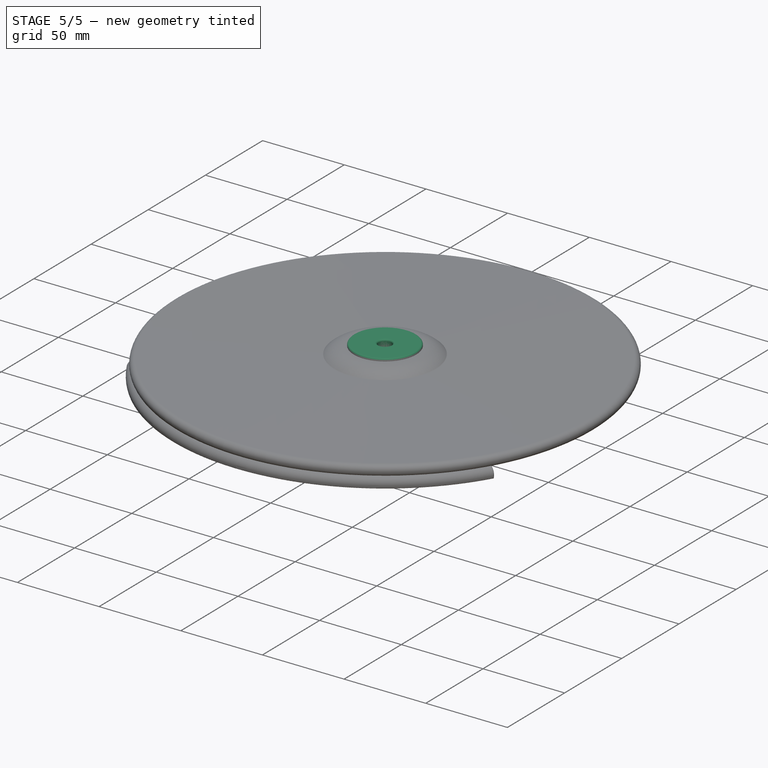
[diagram: stage 5 of 5 — iso view after this stage's code; geometry added in this stage tinted green]
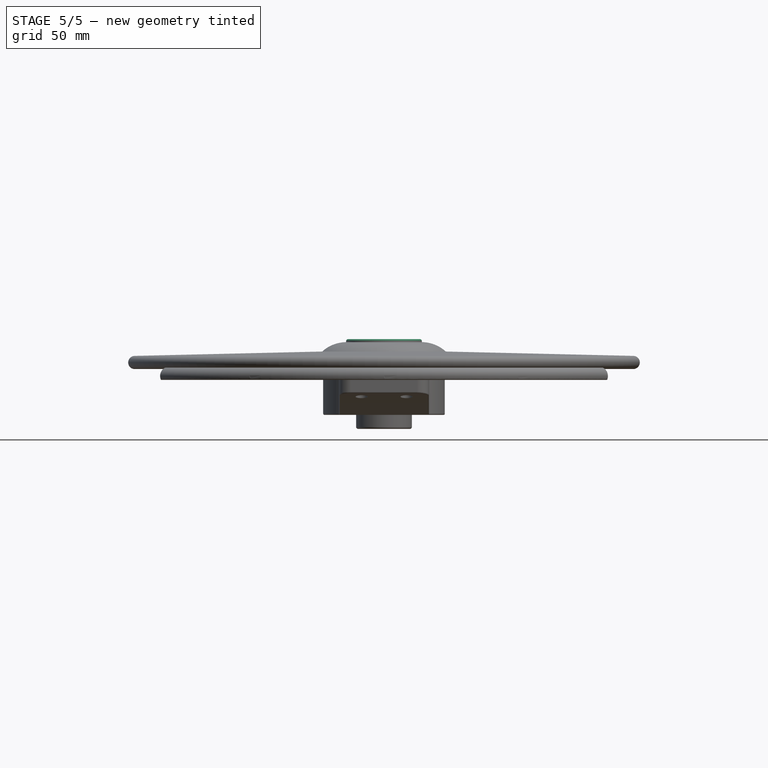
[diagram: stage 5 of 5 — front view after this stage's code; geometry added in this stage tinted green]
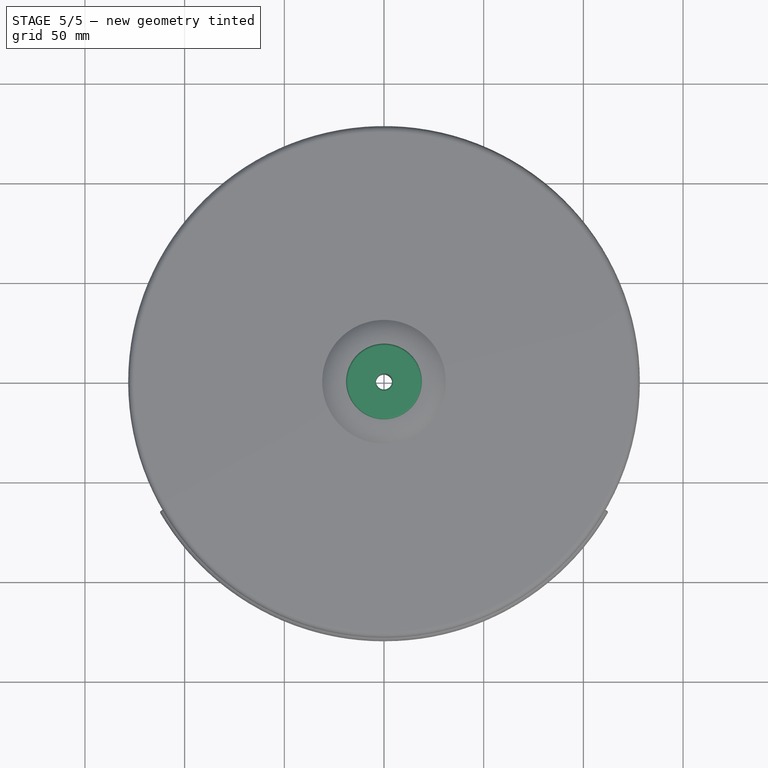
[diagram: stage 5 of 5 — top view after this stage's code; geometry added in this stage tinted green]
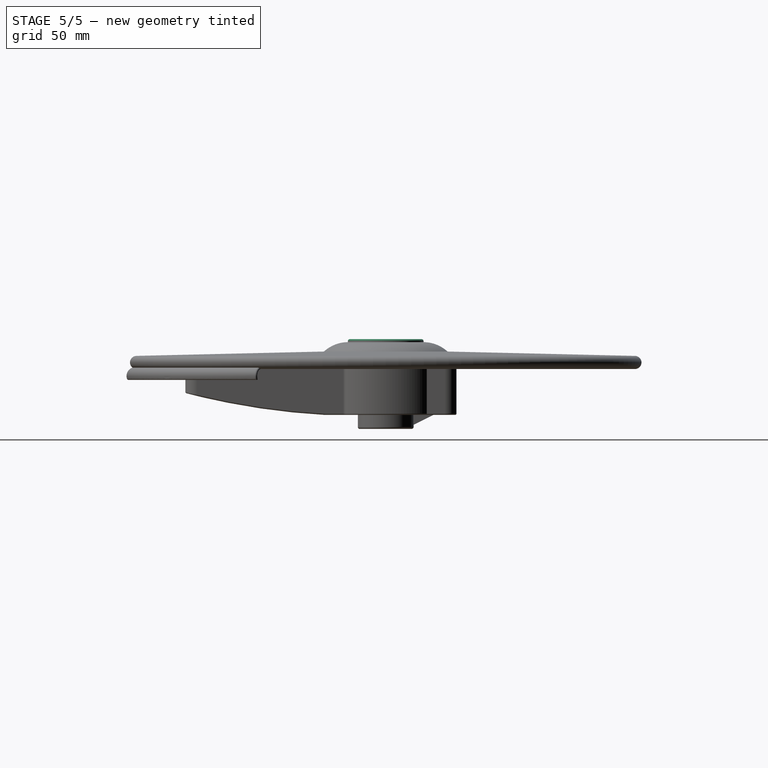
[diagram: stage 5 of 5 — right view after this stage's code; geometry added in this stage tinted green]
FEATURE [PartDesign::AdditiveCylinder] Cylinder010
  Angle = 360
  AttacherType = Attacher::AttachEngine3D
  AttachmentSupport = -> [XY_Plane003]
  FirstAngle = 0
  Height = 15
  MapMode = 5
  Radius = 19
  Refine = true
  SecondAngle = 0
  Suppressed = false
FEATURE [PartDesign::SubtractiveSphere] Sphere001
  Angle1 = -90
  Angle2 = 90
  Angle3 = 360
  AttacherType = Attacher::AttachEngine3D
  AttachmentOffset = pos=(0,0,-5) rot=(0,0,1;0rad)
  AttachmentSupport = -> [XY_Plane003]
  BaseFeature = -> Cylinder010
  MapMode = 2
  Placement = pos=(0,0,-5) rot=(0,0,1;0rad)
  Radius = 14.2
  Refine = true
  Suppressed = false
FEATURE [PartDesign::SubtractiveCylinder] Cylinder011
  Angle = 360
  AttacherType = Attacher::AttachEngine3D
  AttachmentOffset = pos=(0,0,-2) rot=(0,0,1;0rad)
  AttachmentSupport = -> [XY_Plane003]
  BaseFeature = -> Sphere001
  FirstAngle = 0
  Height = 18
  MapMode = 5
  Placement = pos=(0,0,-2) rot=(0,0,1;0rad)
  Radius = 4
  Refine = true
  SecondAngle = 0
  Suppressed = false
FEATURE [Sketcher::SketchObject] Sketch006
  ArcFitTolerance = 1e-06
  AttachmentSupport = -> [XY_Plane003]
  FullyConstrained = true
  MakeInternals = false
  MapMode = 5
  sketch-geometry (29):
    g0: ArcOfCircle CenterX=0 CenterY=0 CenterZ=0 NormalX=0 NormalY=0 NormalZ=1 AngleXU=0 Radius=30.5 StartAngle=2.40046 EndAngle=3.85849
    g1: ArcOfCircle CenterX=16.5 CenterY=29.5 CenterZ=0 NormalX=0 NormalY=0 NormalZ=1 AngleXU=0 Radius=6 StartAngle=3.3e-15 EndAngle=1.5708
    g2: ArcOfCircle CenterX=-16.5 CenterY=29.5 CenterZ=0 NormalX=0 NormalY=0 NormalZ=1 AngleXU=0 Radius=6 StartAngle=1.5708 EndAngle=3.14159
    g3: LineSegment StartX=-16.5 StartY=35.5 StartZ=0 EndX=16.5 EndY=35.5 EndZ=0
    g4: LineSegment StartX=22.5 StartY=29.5 StartZ=0 EndX=22.5 EndY=20.5913 EndZ=0
    g5: LineSegment StartX=-22.5 StartY=20.5913 StartZ=0 EndX=-22.5 EndY=29.5 EndZ=0
    g6: LineSegment StartX=-22.5 StartY=-30.5 StartZ=0 EndX=-22.5 EndY=-94.4864 EndZ=0
    g7: LineSegment StartX=22.5 StartY=-94.4864 StartZ=0 EndX=22.5 EndY=-30.5 EndZ=0
    g8: LineSegment StartX=22.5 StartY=-21.3542 StartZ=0 EndX=22.5 EndY=-30.5 EndZ=0
    g9: LineSegment StartX=-22.5 StartY=-21.3542 StartZ=0 EndX=-22.5 EndY=-30.5 EndZ=0
    g10: ArcOfCircle CenterX=24.5 CenterY=-21.3542 CenterZ=0 NormalX=0 NormalY=0 NormalZ=1 AngleXU=0 Radius=2 StartAngle=2.42469 EndAngle=3.14159
    g11: ArcOfCircle CenterX=-16.5 CenterY=-94.4864 CenterZ=0 NormalX=0 NormalY=0 NormalZ=1 AngleXU=0 Radius=6 StartAngle=3.14159 EndAngle=4.71239
    g12: ArcOfCircle CenterX=16.5 CenterY=-94.4864 CenterZ=0 NormalX=0 NormalY=0 NormalZ=1 AngleXU=0 Radius=6 StartAngle=4.71239 EndAngle=6.28319
    g13: LineSegment StartX=-16.5 StartY=-100.486 StartZ=0 EndX=16.5 EndY=-100.486 EndZ=0
    g14: ArcOfCircle CenterX=0 CenterY=0 CenterZ=0 NormalX=0 NormalY=0 NormalZ=1 AngleXU=0 Radius=30.5 StartAngle=5.56629 EndAngle=7.02432
    g15: ArcOfCircle CenterX=-24.5 CenterY=-21.3542 CenterZ=0 NormalX=0 NormalY=0 NormalZ=1 AngleXU=0 Radius=2 StartAngle=3.18078e-06 EndAngle=0.716892
    g16: Circle CenterX=0 CenterY=0 CenterZ=0 NormalX=0 NormalY=0 NormalZ=1 AngleXU=0 Radius=19
    g17: Circle CenterX=-11.25 CenterY=-93 CenterZ=0 NormalX=0 NormalY=0 NormalZ=1 AngleXU=0 Radius=3
    g18: Circle CenterX=11.25 CenterY=-93 CenterZ=0 NormalX=0 NormalY=0 NormalZ=1 AngleXU=0 Radius=3
    g19: Circle CenterX=-12.25 CenterY=21.2176 CenterZ=0 NormalX=0 NormalY=0 NormalZ=1 AngleXU=0 Radius=1.5
    g20: Circle CenterX=12.25 CenterY=21.2176 CenterZ=0 NormalX=0 NormalY=0 NormalZ=1 AngleXU=0 Radius=1.5
    g21: Circle CenterX=24.5 CenterY=0 CenterZ=0 NormalX=0 NormalY=0 NormalZ=1 AngleXU=0 Radius=1.5
    g22: Circle CenterX=-24.5 CenterY=0 CenterZ=0 NormalX=0 NormalY=0 NormalZ=1 AngleXU=0 Radius=1.5
    g23: Circle CenterX=-12.25 CenterY=-21.2176 CenterZ=0 NormalX=0 NormalY=0 NormalZ=1 AngleXU=0 Radius=1.5
    g24: Circle CenterX=12.25 CenterY=-21.2176 CenterZ=0 NormalX=0 NormalY=0 NormalZ=1 AngleXU=0 Radius=1.5
    g25: LineSegment StartX=-18 StartY=-30.5 StartZ=0 EndX=-18 EndY=-84.4864 EndZ=0
    g26: LineSegment StartX=-18 StartY=-84.4864 StartZ=0 EndX=18 EndY=-84.4864 EndZ=0
    g27: LineSegment StartX=18 StartY=-84.4864 StartZ=0 EndX=18 EndY=-30.5 EndZ=0
    g28: LineSegment StartX=18 StartY=-30.5 StartZ=0 EndX=-18 EndY=-30.5 EndZ=0
  constraints (70):
    c: Coincident(g4,g-6)
    c: Coincident(g4,g-7)
    c: Coincident(g5,g-9)
    c: Coincident(g7,g-14)
    c: Coincident(g7,g-14)
    c: Coincident(g8,g7)
    c: Coincident(g9,g6)
    c: Vertical(g9)
    c: Coincident(g10,g8)
    c: Coincident(g0,g5)
    c: Coincident(g1,g3)
    c: PointOnObject(g14,g4)
    c: Coincident(g2,g5)
    c: Coincident(g1,g4)
    c: Coincident(g1,g-5)
    c: Coincident(g3,g2)
    c: Coincident(g2,g-8)
    c: Coincident(g2,g-4)
    c: Equal(g-3,g2)
    c: Equal(g-5,g1)
    c: Coincident(g10,g-12)
    c: Coincident(g8,g-13)
    c: Equal(g10,g-12)
    c: Equal(g12,g-28)
    c: Coincident(g12,g7)
    c: Coincident(g-25,g12)
    c: Equal(g11,g-24)
    c: Coincident(g11,g6)
    c: Coincident(g13,g11)
    c: Horizontal(g13)
    c: Coincident(g13,g12)
    c: Vertical(g6)
    c: Coincident(g11,g-24)
    c: Coincident(g6,g-16)
    c: Equal(g0,g14)
    c: PointOnObject(g0,g-10)
    c: Coincident(g0,g14)
    c: Coincident(g15,g-10)
    c: Coincident(g15,g0)
    c: Coincident(g15,g9)
    c: PointOnObject(g14,g-7)
    c: Coincident(g14,g10)
    c: Coincident(g16,g0)
    c: Diameter(g16) = 38
    c: Coincident(g17,g-26)
    c: Equal(g17,g-26)
    c: Coincident(g18,g-27)
    c: Equal(g18,g-27)
    c: Coincident(g19,g-17)
    c: Equal(g19,g-17)
    c: Coincident(g20,g-18)
    c: Equal(g20,g-18)
    c: Coincident(g21,g-20)
    c: Equal(g21,g-20)
    c: Coincident(g22,g-19)
    c: Equal(g22,g-19)
    c: Coincident(g23,g-22)
    c: Equal(g23,g-22)
    c: Coincident(g24,g-21)
    c: Equal(g24,g-21)
    c: Coincident(g25,g26)
    c: Coincident(g26,g27)
    c: Coincident(g27,g28)
    c: Coincident(g28,g25)
    c: Vertical(g25)
    c: Vertical(g27)
    c: Horizontal(g26)
    c: Horizontal(g28)
    c: Coincident(g25,g-31)
    c: Coincident(g26,g-32)
FEATURE [PartDesign::SubShapeBinder] Binder
  BindCopyOnChange = 0
  BindMode = 0
  ClaimChildren = false
  Context = -> Body003 [Binder.]
  Fuse = false
  MakeFace = true
  OffsetFill = false
  OffsetIntersection = false
  OffsetJoinType = 0
  OffsetOpenResult = false
  PartialLoad = false
  Refine = true
  Relative = true
  Support = -> [Body001[Cylinder006.,Cylinder006.]]
  _Version = 2
FEATURE [PartDesign::Pad] Pad002
  BaseFeature = -> Cylinder011
  Direction = (0,0,1)
  Length = 1.5
  Length2 = 10
  Placement = pos=(0,0,-2) rot=(0,0,1;0rad)
  Profile = -> Sketch006
  ReferenceAxis = -> Sketch006 [N_Axis]
  Refine = true
  Suppressed = false
  Type = 0
FEATURE [PartDesign::Fillet] Fillet007
  Base = -> Pad002 [Edge3,Edge30,Edge83]
  BaseFeature = -> Pad002
  Placement = pos=(0,0,-2) rot=(0,0,1;0rad)
  Radius = 1
  Refine = true
  SupportTransform = false
  Suppressed = false
  UseAllEdges = false
FEATURE [PartDesign::Fillet] Fillet008
  Base = -> Fillet007 [Edge87]
  BaseFeature = -> Fillet007
  Placement = pos=(0,0,-2) rot=(0,0,1;0rad)
  Radius = 8
  Refine = true
  SupportTransform = false
  Suppressed = false
  UseAllEdges = false
FEATURE [PartDesign::Body] Body003  label="Mount Plug Body"
  AllowCompound = false
  Group = -> [Cylinder010,Sphere001,Cylinder011,Binder,Sketch006,Pad002,Fillet007,Fillet008]
  Origin = -> Origin003
  Placement = pos=(0,0,-1.5) rot=(0,0,1;0rad)
  Tip = -> Fillet008
FEATURE [Part::FeaturePython] Screw  label="ST2.2x6.5-Screw"  # WARN: FeaturePython — macro-defined, semantics opaque (R4)
  Diameter = 1
  Invert = false
  LeftHanded = false
  Length = 1
  LengthCustom = 6.5
  MatchOuter = false
  OffsetAngle = 0
  Placement = pos=(-11.3,-93,-6) rot=(0,1,0;3.14159rad)
  Thread = true
  Type = 82
FEATURE [PartDesign::Fillet] Fillet009
  Base = -> Fillet006 [Edge13]
  BaseFeature = -> Fillet006
  Placement = pos=(1,0,-20) rot=(0.57735,0.57735,0.57735;2.0944rad)
  Radius = 0.7
  Refine = true
  SupportTransform = false
  Suppressed = false
  UseAllEdges = false
FEATURE [PartDesign::SubtractiveCylinder] Cylinder006
  Angle = 360
  AttacherType = Attacher::AttachEngine3D
  AttachmentOffset = pos=(42,-9.5,0) rot=(0,0,1;0rad)
  AttachmentSupport = -> [DatumPlane003]
  BaseFeature = -> Fillet
  FirstAngle = 0
  Height = 10
  MapMode = 5
  Placement = pos=(22.5,-42,-9.5) rot=(0.57735,-0.57735,-0.57735;2.0944rad)
  Radius = 6
  Refine = true
  SecondAngle = 0
  Suppressed = false
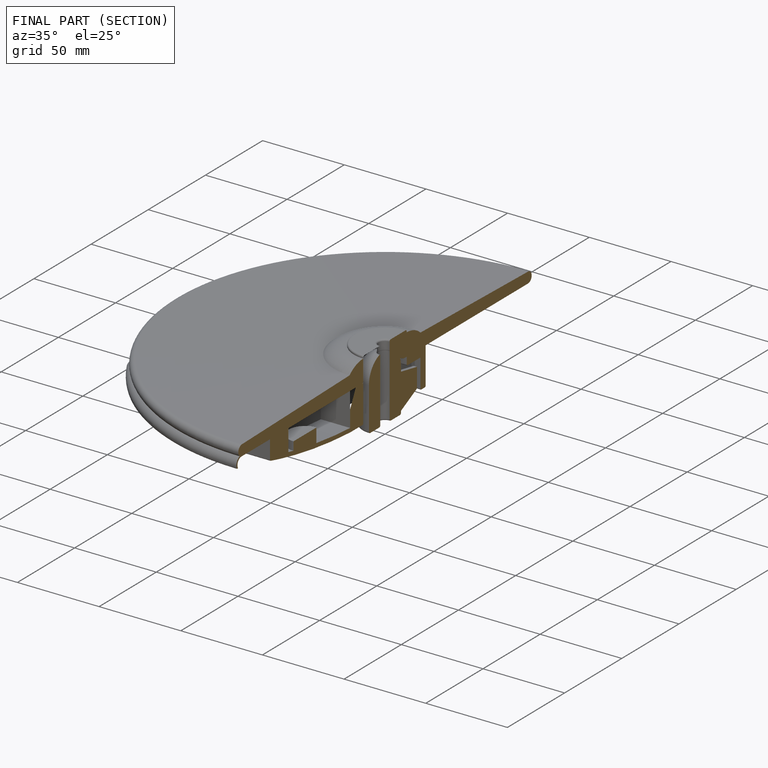
[diagram: finished part — half-section view (interior)]
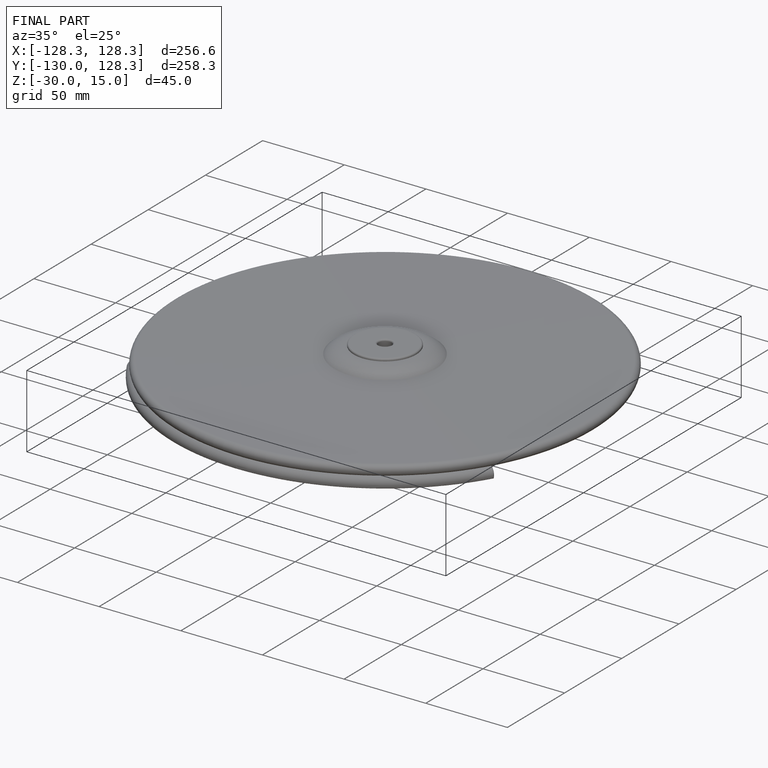
[diagram: finished part — iso view with bounding-box wireframe]
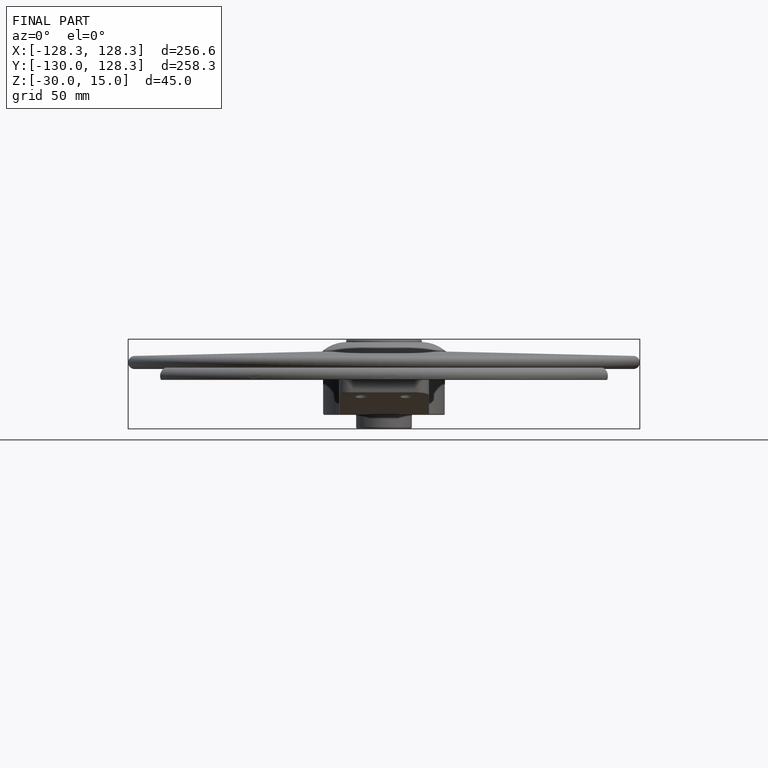
[diagram: finished part — front view with bounding-box wireframe]
